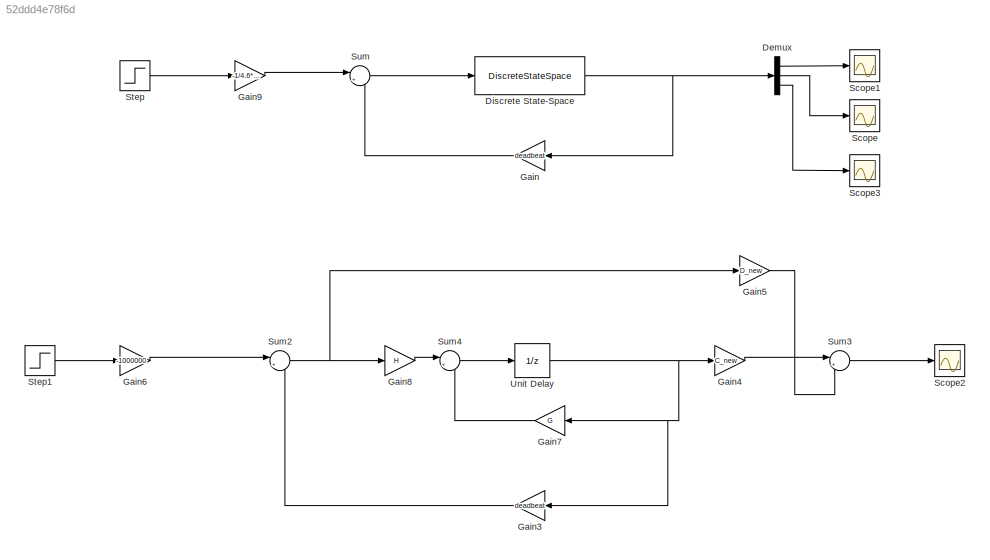
MODEL slx_52ddd4e78f6d
KIND model
CONFIG AbsTol = auto
CONFIG EnableMultiTasking = off
CONFIG FixedStep = auto
CONFIG MaxStep = auto
CONFIG MinStep = auto
CONFIG RelTol = 1e-3
CONFIG SampleTimeConstraint = Unconstrained
CONFIG SolverName = VariableStepAuto
CONFIG StartTime = 0.0
CONFIG StopTime = 10
BLOCK [Demux] Demux
  Outputs = 3
  Ports = [1, 3]
BLOCK [DiscreteStateSpace] Discrete State-Space
  A = G
  B = H
  C = eye(3)
  D = [0;0;0]
BLOCK [Gain] Gain
  Gain = deadbeat
  Multiplication = Matrix(K*u)
  NameLocation = top
BLOCK [Gain] Gain3
  Commented = on
  Gain = deadbeat
  Multiplication = Matrix(K*u)
  NameLocation = top
BLOCK [Gain] Gain4
  Commented = on
  Gain = C_new
  Multiplication = Matrix(K*u)
BLOCK [Gain] Gain5
  Commented = on
  Gain = D_new
BLOCK [Gain] Gain6
  Commented = on
  Gain = -1000000
BLOCK [Gain] Gain7
  Commented = on
  Gain = G
  Multiplication = Matrix(K*u)
  NameLocation = top
BLOCK [Gain] Gain8
  Commented = on
  Gain = H
  Multiplication = Matrix(K*u)
BLOCK [Gain] Gain9
  Gain = -1/4.6*10^6
BLOCK [Scope] Scope
  Floating = off
  NumInputPorts = 1
  Ports = [1]
  ScopeSpecificationString = Simulink.scopes.TimeScopeBlockCfg('CurrentConfiguration', extmgr.ConfigurationSet(extmgr.Configuration('Core','General UI',true),extmgr.Configuration('Core','Source UI',true),extmgr.Configuration('Sources','WiredSimulink',true),extmgr.Configuration('Visuals','Time Domain',true,'SerializedDisplays',{struct('MinYLimReal','-0.12742','MaxYLimReal','0.01416','YLabelReal','','MinYLimMag','0.00000','MaxY...<+1426ch>
BLOCK [Scope] Scope1
  Floating = off
  NumInputPorts = 1
  Ports = [1]
  ScopeSpecificationString = Simulink.scopes.TimeScopeBlockCfg('CurrentConfiguration', extmgr.ConfigurationSet(extmgr.Configuration('Core','General UI',true),extmgr.Configuration('Core','Source UI',true),extmgr.Configuration('Sources','WiredSimulink',true,'DataLoggingVariableName','ScopeData1'),extmgr.Configuration('Visuals','Time Domain',true,'SerializedDisplays',{struct('MinYLimReal','-0.12497','MaxYLimReal','1.12475','YLab...<+1401ch>
BLOCK [Scope] Scope2
  Commented = on
  Floating = off
  NumInputPorts = 1
  Ports = [1]
  ScopeSpecificationString = Simulink.scopes.TimeScopeBlockCfg('CurrentConfiguration', extmgr.ConfigurationSet(extmgr.Configuration('Core','General UI',true),extmgr.Configuration('Core','Source UI',true),extmgr.Configuration('Sources','WiredSimulink',true,'DataLoggingVariableName','ScopeData2'),extmgr.Configuration('Visuals','Time Domain',true,'SerializedDisplays',{struct('MinYLimReal','0.31289','MaxYLimReal','5.07521','YLabe...<+1434ch>
BLOCK [Scope] Scope3
  Floating = off
  NumInputPorts = 1
  Ports = [1]
  ScopeSpecificationString = Simulink.scopes.TimeScopeBlockCfg('CurrentConfiguration', extmgr.ConfigurationSet(extmgr.Configuration('Core','General UI',true),extmgr.Configuration('Core','Source UI',true),extmgr.Configuration('Sources','WiredSimulink',true,'DataLoggingVariableName','ScopeData3'),extmgr.Configuration('Visuals','Time Domain',true,'SerializedDisplays',{struct('MinYLimReal','-21577.52686','MaxYLimReal','21150.2711...<+1422ch>
BLOCK [Step] Step
  SampleTime = 0
BLOCK [Step] Step1
  Commented = on
  SampleTime = 0
  Time = 0
BLOCK [Sum] Sum
  Inputs = |+-
  Ports = [2, 1]
BLOCK [Sum] Sum2
  Commented = on
  Inputs = |+-
  Ports = [2, 1]
BLOCK [Sum] Sum3
  Commented = on
  Inputs = |++
  Ports = [2, 1]
BLOCK [Sum] Sum4
  Commented = on
  Inputs = |++
  Ports = [2, 1]
BLOCK [UnitDelay] Unit Delay
  Commented = on
  HasFrameUpgradeWarning = on
LINE Demux:1 -> Scope1:1
LINE Demux:2 -> Scope:1
LINE Demux:3 -> Scope3:1
NET Discrete State-Space:1 -> Demux:1, Gain:1
LINE Gain3:1 -> Sum2:2
LINE Gain4:1 -> Sum3:1
LINE Gain5:1 -> Sum3:2
LINE Gain6:1 -> Sum2:1
LINE Gain7:1 -> Sum4:2
LINE Gain8:1 -> Sum4:1
LINE Gain9:1 -> Sum:1
LINE Gain:1 -> Sum:2
LINE Step1:1 -> Gain6:1
LINE Step:1 -> Gain9:1
NET Sum2:1 -> Gain5:1, Gain8:1
LINE Sum3:1 -> Scope2:1
LINE Sum4:1 -> Unit Delay:1
LINE Sum:1 -> Discrete State-Space:1
NET Unit Delay:1 -> Gain3:1, Gain4:1, Gain7:1
note: NET lines group one-source signal fan-out (src -> all destinations, sorted); 1:1 wires keep LINE
